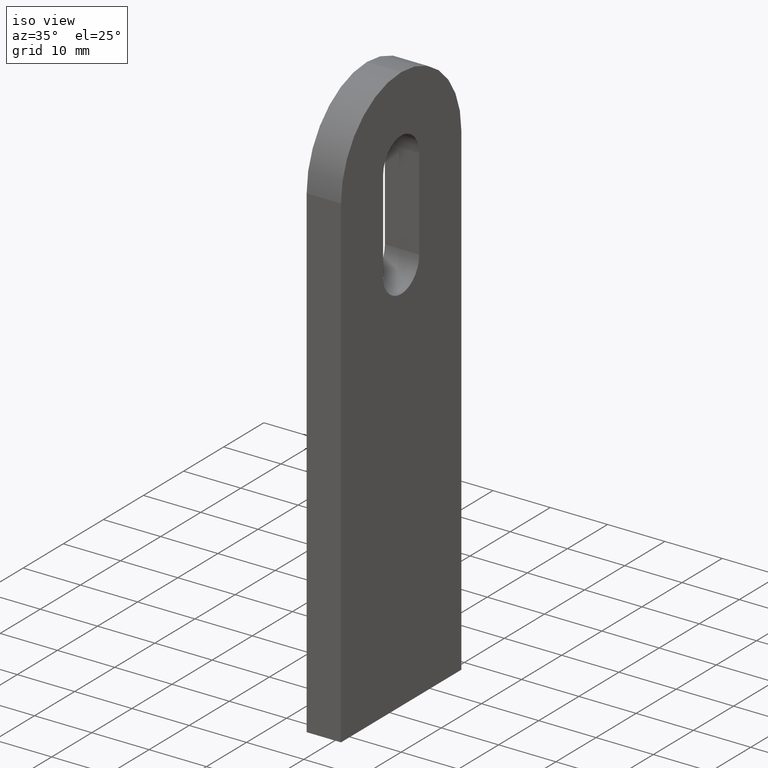
[diagram: clean part render]
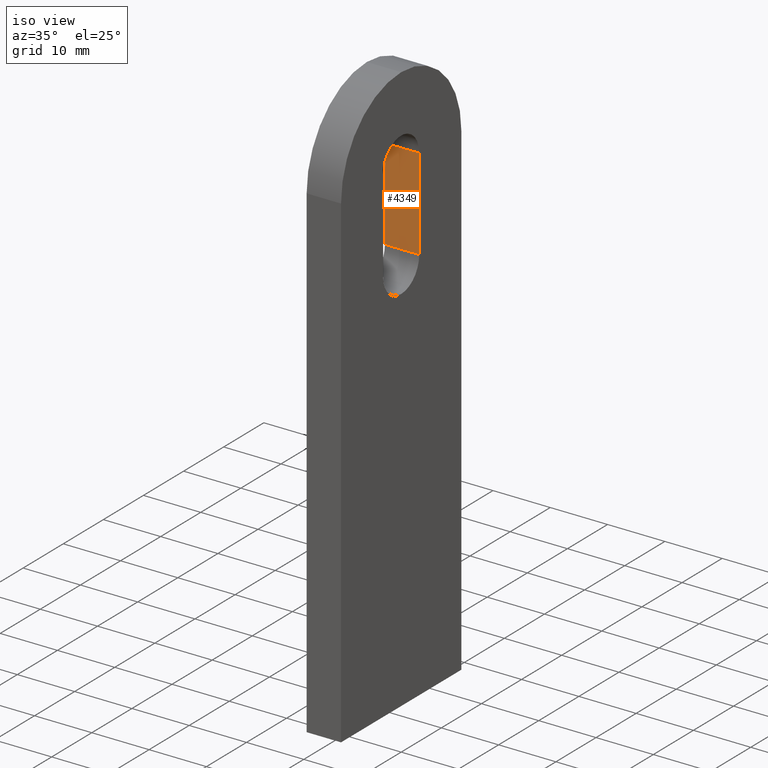
[diagram: same view with one face highlighted and labeled with its STEP entity id]
A machine part, iso view. The second image highlights one B-rep face of the part: STEP entity #4349.
In plain terms, the highlighted planar face has unit normal (0, 1, 0).
Its self-contained STEP definition (entity closure, byte-faithful):
#538 = DIRECTION ( 'NONE',  ( -0.0000000000000000000, -1.626303258728257900E-016, 1.000000000000000000 ) ) ;
#550 = LINE ( 'NONE', #3189, #10245 ) ;
#809 = EDGE_CURVE ( 'NONE', #8982, #7712, #7701, .T. ) ;
#835 = AXIS2_PLACEMENT_3D ( 'NONE', #6663, #5740, #4967 ) ;
#969 = VECTOR ( 'NONE', #7739, 1000.000000000000000 ) ;
#1223 = ORIENTED_EDGE ( 'NONE', *, *, #6267, .T. ) ;
#1258 = ORIENTED_EDGE ( 'NONE', *, *, #809, .T. ) ;
#3189 = CARTESIAN_POINT ( 'NONE',  ( -3.000000000000000000, 4.500000000000000900, 85.49999999999998600 ) ) ;
#3808 = DIRECTION ( 'NONE',  ( 1.000000000000000000, -0.0000000000000000000, -0.0000000000000000000 ) ) ;
#4049 = ORIENTED_EDGE ( 'NONE', *, *, #6743, .F. ) ;
#4064 = EDGE_LOOP ( 'NONE', ( #1258, #4049, #4962, #1223 ) ) ;
#4349 = ADVANCED_FACE ( 'NONE', ( #7403 ), #8144, .F. ) ;
#4488 = CARTESIAN_POINT ( 'NONE',  ( 3.000000000000000000, 4.500000000000003600, 69.50000000000000000 ) ) ;
#4521 = CARTESIAN_POINT ( 'NONE',  ( -3.000000000000000000, 4.500000000000000900, 85.49999999999998600 ) ) ;
#4587 = CARTESIAN_POINT ( 'NONE',  ( -3.000000000000000000, 4.500000000000003600, 69.50000000000000000 ) ) ;
#4962 = ORIENTED_EDGE ( 'NONE', *, *, #8306, .F. ) ;
#4967 = DIRECTION ( 'NONE',  ( 0.0000000000000000000, -1.626303258728257900E-016, 1.000000000000000000 ) ) ;
#5277 = LINE ( 'NONE', #4521, #969 ) ;
#5497 = DIRECTION ( 'NONE',  ( -0.0000000000000000000, -1.626303258728257900E-016, 1.000000000000000000 ) ) ;
#5522 = VECTOR ( 'NONE', #3808, 1000.000000000000000 ) ;
#5740 = DIRECTION ( 'NONE',  ( 0.0000000000000000000, 1.000000000000000000, 1.626303258728257900E-016 ) ) ;
#5968 = VECTOR ( 'NONE', #538, 1000.000000000000000 ) ;
#6267 = EDGE_CURVE ( 'NONE', #6726, #8982, #7776, .T. ) ;
#6443 = VERTEX_POINT ( 'NONE', #10415 ) ;
#6663 = CARTESIAN_POINT ( 'NONE',  ( -3.000000000000000000, 4.500000000000000900, 85.49999999999998600 ) ) ;
#6726 = VERTEX_POINT ( 'NONE', #7636 ) ;
#6743 = EDGE_CURVE ( 'NONE', #6443, #7712, #5277, .T. ) ;
#7403 = FACE_OUTER_BOUND ( 'NONE', #4064, .T. ) ;
#7636 = CARTESIAN_POINT ( 'NONE',  ( -3.000000000000000000, 4.500000000000003600, 69.50000000000000000 ) ) ;
#7701 = LINE ( 'NONE', #9434, #5968 ) ;
#7712 = VERTEX_POINT ( 'NONE', #8021 ) ;
#7739 = DIRECTION ( 'NONE',  ( 1.000000000000000000, -0.0000000000000000000, -0.0000000000000000000 ) ) ;
#7776 = LINE ( 'NONE', #4587, #5522 ) ;
#8021 = CARTESIAN_POINT ( 'NONE',  ( 3.000000000000000000, 4.500000000000000900, 85.49999999999998600 ) ) ;
#8144 = PLANE ( 'NONE',  #835 ) ;
#8306 = EDGE_CURVE ( 'NONE', #6726, #6443, #550, .T. ) ;
#8982 = VERTEX_POINT ( 'NONE', #4488 ) ;
#9434 = CARTESIAN_POINT ( 'NONE',  ( 3.000000000000000000, 4.500000000000000900, 85.49999999999998600 ) ) ;
#10245 = VECTOR ( 'NONE', #5497, 1000.000000000000000 ) ;
#10415 = CARTESIAN_POINT ( 'NONE',  ( -3.000000000000000000, 4.500000000000000900, 85.49999999999998600 ) ) ;